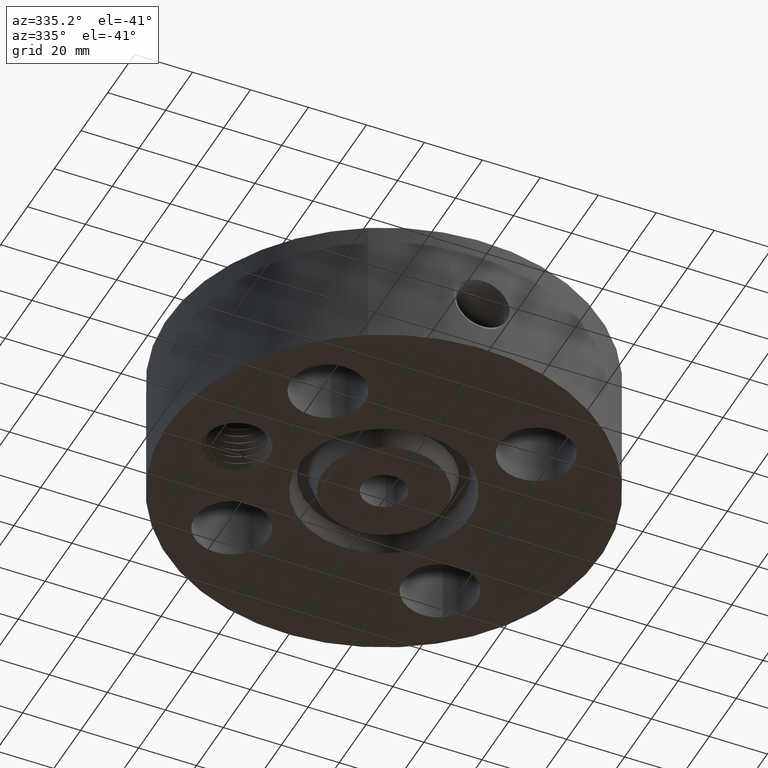
[diagram: clean part render]
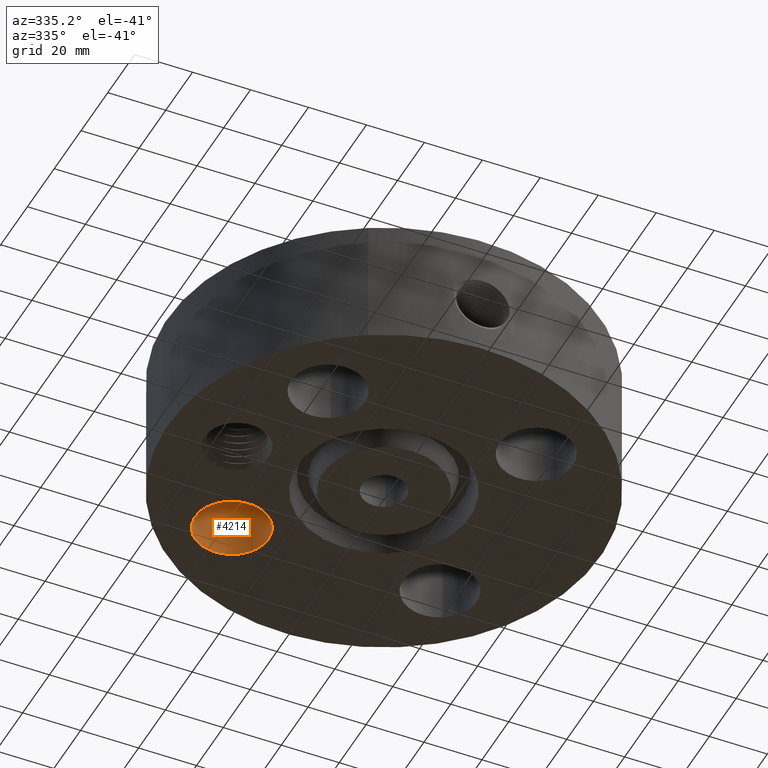
[diagram: same view with one face highlighted and labeled with its STEP entity id]
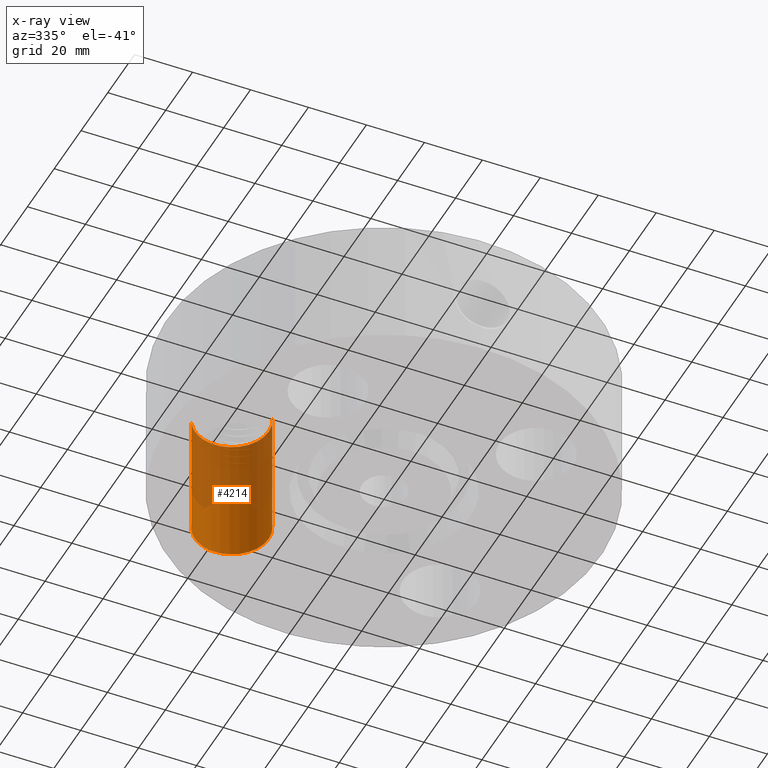
[diagram: x-ray of the same camera — body ghosted, the highlighted face saturated]
A machine part, auxiliary view. The second image highlights one B-rep face of the part: STEP entity #4214.
The next image is the same camera in x-ray: the body ghosted, the highlighted face saturated — about 58% of this face is hidden behind the body in this view.
In plain terms, the highlighted cylindrical surface (partial cylindrical patch) has radius 12.7 mm, axis along (-0, 0, -1).
Its self-contained STEP definition (entity closure, byte-faithful):
#2994=AXIS2_PLACEMENT_3D('Circle Axis2P3D',#2992,#2993,$) ;
#4175=AXIS2_PLACEMENT_3D('Cylinder Axis2P3D',#4172,#4173,#4174) ;
#4205=AXIS2_PLACEMENT_3D('Circle Axis2P3D',#4203,#4204,$) ;
#2992=CARTESIAN_POINT('Axis2P3D Location',(-1.41421356238,1.41421356238,1.75000000001)) ;
#2996=CARTESIAN_POINT('Vertex',(-1.85300484333,1.65392633168,1.75000000001)) ;
#2998=CARTESIAN_POINT('Vertex',(-0.975422281432,1.17450079308,1.75000000001)) ;
#4172=CARTESIAN_POINT('Axis2P3D Location',(-1.41421356238,1.41421356238,1.74606299213)) ;
#4177=CARTESIAN_POINT('Line Origine',(-0.975422281432,1.17450079308,0.875000000003)) ;
#4181=CARTESIAN_POINT('Vertex',(-0.975422281432,1.17450079308,0.)) ;
#4188=CARTESIAN_POINT('Vertex',(-1.85300484333,1.65392633168,0.)) ;
#4191=CARTESIAN_POINT('Line Origine',(-1.85300484333,1.65392633168,0.875000000003)) ;
#4203=CARTESIAN_POINT('Axis2P3D Location',(-1.41421356238,1.41421356238,0.)) ;
#2993=DIRECTION('Axis2P3D Direction',(0.,0.,-0.0393700787402)) ;
#4173=DIRECTION('Axis2P3D Direction',(-0.,0.,-0.0393700787402)) ;
#4174=DIRECTION('Axis2P3D XDirection',(-0.0345504945626,0.0188750212049,0.)) ;
#4178=DIRECTION('Vector Direction',(0.,0.,-0.0393700787402)) ;
#4192=DIRECTION('Vector Direction',(0.,0.,-0.0393700787402)) ;
#4204=DIRECTION('Axis2P3D Direction',(-0.,0.,-0.0393700787402)) ;
#4179=VECTOR('Line Direction',#4178,0.0393700787402) ;
#4193=VECTOR('Line Direction',#4192,0.0393700787402) ;
#4209=ORIENTED_EDGE('',*,*,#4195,.F.) ;
#4210=ORIENTED_EDGE('',*,*,#4207,.T.) ;
#4211=ORIENTED_EDGE('',*,*,#4183,.T.) ;
#4212=ORIENTED_EDGE('',*,*,#3000,.F.) ;
#4214=ADVANCED_FACE('PartBody',(#4213),#4176,.F.) ;
#2995=CIRCLE('generated circle',#2994,0.500000000002) ;
#4206=CIRCLE('generated circle',#4205,0.500000000002) ;
#4176=CYLINDRICAL_SURFACE('generated cylinder',#4175,0.500000000002) ;
#3000=EDGE_CURVE('',#2997,#2999,#2995,.T.) ;
#4183=EDGE_CURVE('',#4182,#2999,#4180,.F.) ;
#4195=EDGE_CURVE('',#4189,#2997,#4194,.F.) ;
#4207=EDGE_CURVE('',#4189,#4182,#4206,.T.) ;
#4208=EDGE_LOOP('',(#4209,#4210,#4211,#4212)) ;
#4213=FACE_OUTER_BOUND('',#4208,.T.) ;
#4180=LINE('Line',#4177,#4179) ;
#4194=LINE('Line',#4191,#4193) ;
#2997=VERTEX_POINT('',#2996) ;
#2999=VERTEX_POINT('',#2998) ;
#4182=VERTEX_POINT('',#4181) ;
#4189=VERTEX_POINT('',#4188) ;